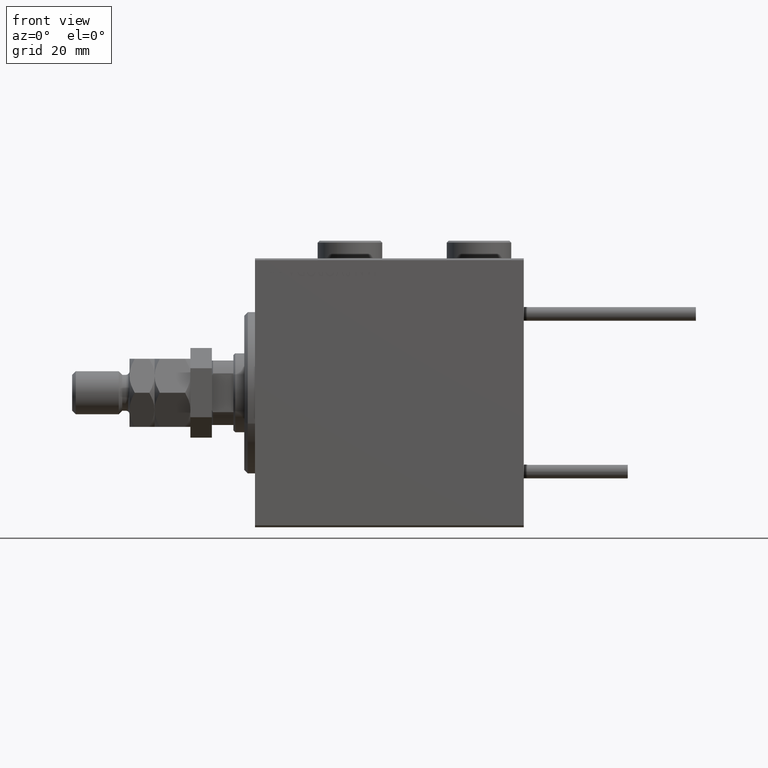
[diagram: clean part render]
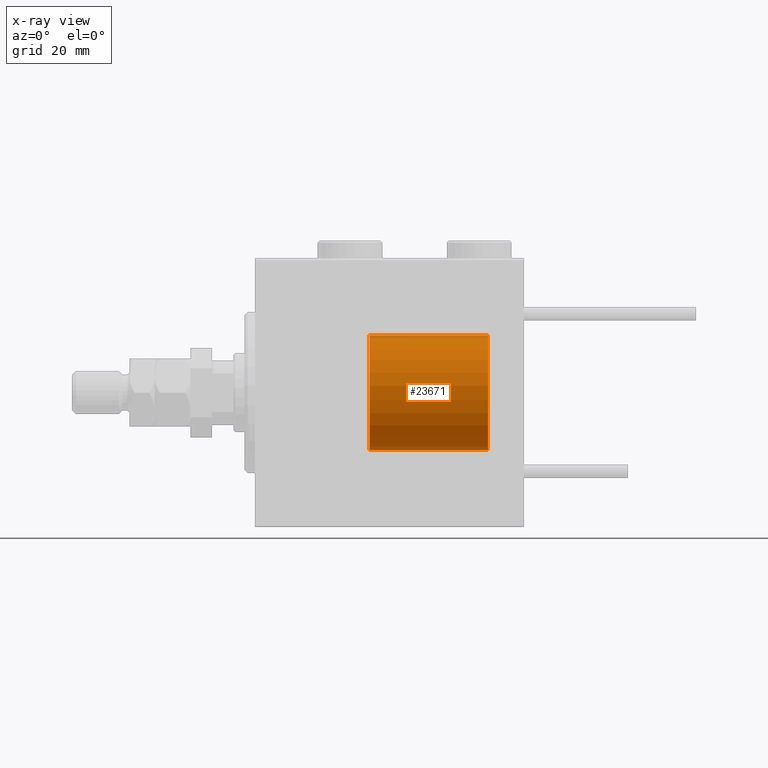
[diagram: x-ray — body ghosted, one internal face saturated and labeled with its STEP entity id]
A machine part, front view, then the same camera in x-ray: the body is ghosted and one INTERNAL B-rep face — a face not visible from any outside direction — is saturated and labeled: STEP entity #23671.
In plain terms, the highlighted cylindrical surface (partial cylindrical patch) has radius 16 mm, axis along (1, -0, -0).
Its self-contained STEP definition (entity closure, byte-faithful):
#515 = LINE ( 'NONE', #44814, #40992 ) ;
#986 = ORIENTED_EDGE ( 'NONE', *, *, #5246, .T. ) ;
#1255 = VERTEX_POINT ( 'NONE', #30868 ) ;
#1799 = DIRECTION ( 'NONE',  ( 1.000000000000000000, 0.000000000000000000, 0.000000000000000000 ) ) ;
#5246 = EDGE_CURVE ( 'NONE', #39641, #1255, #23982, .T. ) ;
#5857 = CIRCLE ( 'NONE', #31537, 16.00000000000000000 ) ;
#6565 = DIRECTION ( 'NONE',  ( -0.000000000000000000, -0.000000000000000000, -1.000000000000000000 ) ) ;
#8039 = DIRECTION ( 'NONE',  ( -0.000000000000000000, -0.000000000000000000, -1.000000000000000000 ) ) ;
#8713 = AXIS2_PLACEMENT_3D ( 'NONE', #47031, #42428, #34371 ) ;
#9904 = VECTOR ( 'NONE', #40575, 1000.000000000000000 ) ;
#11339 = EDGE_CURVE ( 'NONE', #1255, #31786, #5857, .T. ) ;
#11913 = CARTESIAN_POINT ( 'NONE',  ( -16.00000000000000000, 0.000000000000000000, 33.00000000000000000 ) ) ;
#12417 = DIRECTION ( 'NONE',  ( -1.000000000000000000, 0.000000000000000000, 0.000000000000000000 ) ) ;
#13754 = ORIENTED_EDGE ( 'NONE', *, *, #31663, .F. ) ;
#18927 = CARTESIAN_POINT ( 'NONE',  ( 0.000000000000000000, 0.000000000000000000, 0.000000000000000000 ) ) ;
#23671 = ADVANCED_FACE ( 'NONE', ( #43308 ), #51148, .T. ) ;
#23982 = LINE ( 'NONE', #51926, #9904 ) ;
#26702 = CARTESIAN_POINT ( 'NONE',  ( 0.000000000000000000, 0.000000000000000000, 33.00000000000000000 ) ) ;
#30868 = CARTESIAN_POINT ( 'NONE',  ( -16.00000000000000000, 0.000000000000000000, 0.000000000000000000 ) ) ;
#31537 = AXIS2_PLACEMENT_3D ( 'NONE', #18927, #34497, #1799 ) ;
#31663 = EDGE_CURVE ( 'NONE', #35176, #31786, #515, .T. ) ;
#31786 = VERTEX_POINT ( 'NONE', #33753 ) ;
#33164 = ORIENTED_EDGE ( 'NONE', *, *, #42363, .F. ) ;
#33753 = CARTESIAN_POINT ( 'NONE',  ( 16.00000000000000000, 1.959434878635765131E-15, 0.000000000000000000 ) ) ;
#34371 = DIRECTION ( 'NONE',  ( 1.000000000000000000, 0.000000000000000000, 0.000000000000000000 ) ) ;
#34497 = DIRECTION ( 'NONE',  ( 0.000000000000000000, 0.000000000000000000, 1.000000000000000000 ) ) ;
#35176 = VERTEX_POINT ( 'NONE', #36476 ) ;
#36071 = CIRCLE ( 'NONE', #8713, 16.00000000000000000 ) ;
#36476 = CARTESIAN_POINT ( 'NONE',  ( 16.00000000000000000, 1.959434878635765131E-15, 33.00000000000000000 ) ) ;
#39641 = VERTEX_POINT ( 'NONE', #11913 ) ;
#40575 = DIRECTION ( 'NONE',  ( -0.000000000000000000, -0.000000000000000000, -1.000000000000000000 ) ) ;
#40992 = VECTOR ( 'NONE', #8039, 1000.000000000000000 ) ;
#41958 = EDGE_LOOP ( 'NONE', ( #13754, #33164, #986, #46619 ) ) ;
#42363 = EDGE_CURVE ( 'NONE', #39641, #35176, #36071, .T. ) ;
#42428 = DIRECTION ( 'NONE',  ( 0.000000000000000000, 0.000000000000000000, 1.000000000000000000 ) ) ;
#43308 = FACE_OUTER_BOUND ( 'NONE', #41958, .T. ) ;
#44814 = CARTESIAN_POINT ( 'NONE',  ( 16.00000000000000000, 1.959434878635765131E-15, 33.00000000000000000 ) ) ;
#46619 = ORIENTED_EDGE ( 'NONE', *, *, #11339, .T. ) ;
#47031 = CARTESIAN_POINT ( 'NONE',  ( 0.000000000000000000, 0.000000000000000000, 33.00000000000000000 ) ) ;
#50375 = AXIS2_PLACEMENT_3D ( 'NONE', #26702, #6565, #12417 ) ;
#51148 = CYLINDRICAL_SURFACE ( 'NONE', #50375, 16.00000000000000000 ) ;
#51926 = CARTESIAN_POINT ( 'NONE',  ( -16.00000000000000000, 0.000000000000000000, 33.00000000000000000 ) ) ;